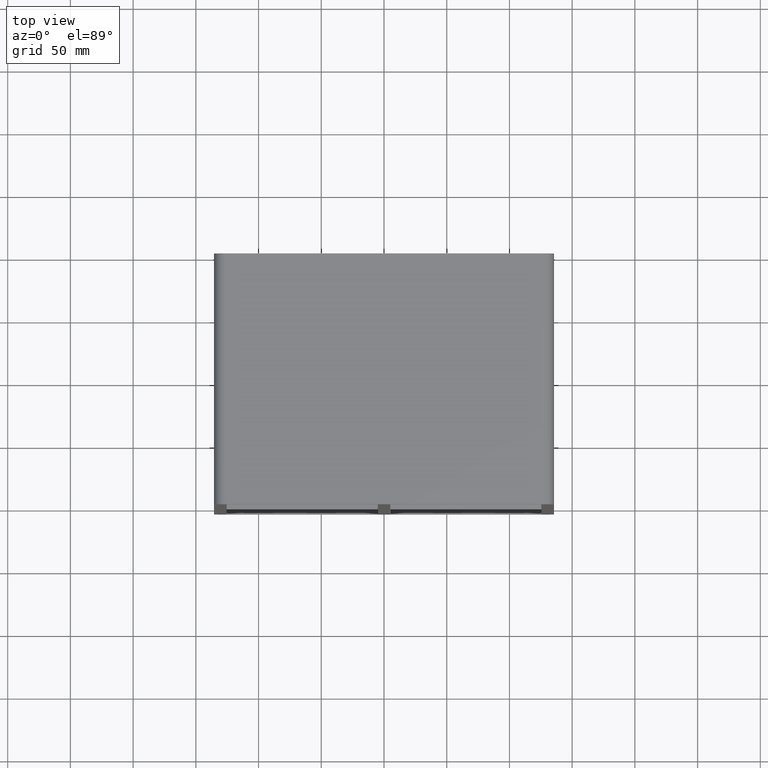
[diagram: clean part render]
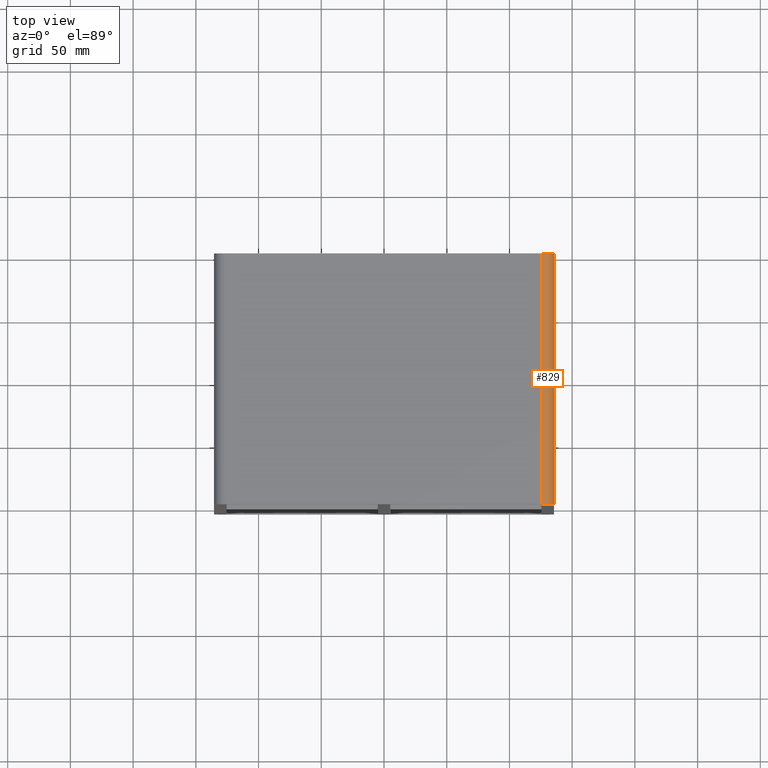
[diagram: same view with one face highlighted and labeled with its STEP entity id]
A machine part, top view. The second image highlights one B-rep face of the part: STEP entity #829.
In plain terms, the highlighted cylindrical surface (edge-blend (fillet) strip) has radius 10 mm, axis along (0, -1, 0).
Its self-contained STEP definition (entity closure, byte-faithful):
#354=CARTESIAN_POINT('',(125.49999999999999,197.0,238.0));
#355=VERTEX_POINT('',#354);
#362=CARTESIAN_POINT('',(135.5,197.0,228.0));
#363=VERTEX_POINT('',#362);
#364=CARTESIAN_POINT('',(125.49999999999999,197.0,228.0));
#365=DIRECTION('',(0.0,-1.0,0.0));
#366=DIRECTION('',(0.707106781186547,0.0,0.707106781186547));
#367=AXIS2_PLACEMENT_3D('',#364,#365,#366);
#368=CIRCLE('',#367,9.999999999999998);
#369=EDGE_CURVE('',#363,#355,#368,.T.);
#702=CARTESIAN_POINT('',(135.5,-3.0,228.0));
#703=VERTEX_POINT('',#702);
#710=CARTESIAN_POINT('',(125.49999999999999,-3.0,238.0));
#711=VERTEX_POINT('',#710);
#712=CARTESIAN_POINT('',(125.49999999999999,-3.0,228.0));
#713=DIRECTION('',(0.0,1.0,0.0));
#714=DIRECTION('',(0.707106781186547,0.0,0.707106781186547));
#715=AXIS2_PLACEMENT_3D('',#712,#713,#714);
#716=CIRCLE('',#715,9.999999999999998);
#717=EDGE_CURVE('',#711,#703,#716,.T.);
#808=CARTESIAN_POINT('',(125.49999999999999,0.0,228.0));
#809=DIRECTION('',(0.0,-1.0,0.0));
#810=DIRECTION('',(0.707106781186547,0.0,0.707106781186547));
#811=AXIS2_PLACEMENT_3D('',#808,#809,#810);
#812=CYLINDRICAL_SURFACE('',#811,10.0);
#813=ORIENTED_EDGE('',*,*,#717,.T.);
#814=CARTESIAN_POINT('',(135.5,-3.0,228.0));
#815=DIRECTION('',(0.0,1.0,0.0));
#816=VECTOR('',#815,200.0);
#817=LINE('',#814,#816);
#818=EDGE_CURVE('',#703,#363,#817,.T.);
#819=ORIENTED_EDGE('',*,*,#818,.T.);
#820=ORIENTED_EDGE('',*,*,#369,.T.);
#821=CARTESIAN_POINT('',(125.49999999999999,197.0,238.0));
#822=DIRECTION('',(0.0,-1.0,0.0));
#823=VECTOR('',#822,200.0);
#824=LINE('',#821,#823);
#825=EDGE_CURVE('',#355,#711,#824,.T.);
#826=ORIENTED_EDGE('',*,*,#825,.T.);
#827=EDGE_LOOP('',(#813,#819,#820,#826));
#828=FACE_OUTER_BOUND('',#827,.T.);
#829=ADVANCED_FACE('',(#828),#812,.T.);